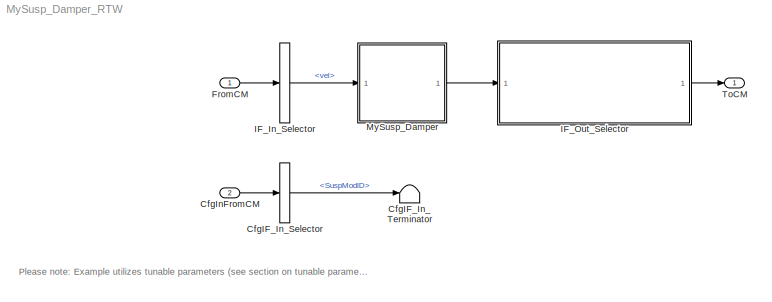
MODEL MySusp_Damper_RTW
KIND model
CONFIG InitFcn = vehicle = 'Car'; if ~length(which('cmself')), cmenv; end\nMySusp_Damper_RTW_bus
CONFIG PreLoadFcn = vehicle = 'Car'; if ~length(which('cmself')), cmenv; end\nMySusp_Damper_RTW_bus\nMySusp_Damper_RTW_params
BLOCK [BusSelector] CfgIF_In_Selector
  OutputSignals = SuspModID
  Ports = [1, 1]
  SID = 9
BLOCK [Terminator] CfgIF_In_Terminator
  SID = 10
BLOCK [Inport] CfgInFromCM
  OutDataTypeStr = Bus: cmSusp_DamperCfgIn
  Port = 2
  SID = 8
BLOCK [Inport] FromCM
  OutDataTypeStr = Bus: cmSusp_DamperIn
  SID = 1
BLOCK [BusSelector] IF_In_Selector
  OutputSignals = vel
  Ports = [1, 1]
  SID = 2
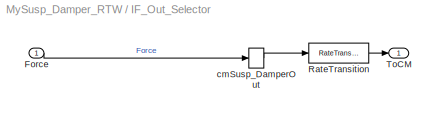
BLOCK [SubSystem] IF_Out_Selector
  OpenFcn = cmSignalSelect('SignalSelection_CB',gcb)
  Ports = [1, 1]
  RequestExecContextInheritance = off
  SID = 5
  UserData = DataTag0
  UserDataPersistent = on
BLOCK [Inport] IF_Out_Selector/Force
  SID = 13
BLOCK [RateTransition] IF_Out_Selector/RateTransition
  OutPortSampleTime = str2num(get_param(bdroot,'FixedStep'))
  SID = 6
BLOCK [Outport] IF_Out_Selector/ToCM
  SID = 7
  VectorParamsAs1DForOutWhenUnconnected = off
BLOCK [BusCreator] IF_Out_Selector/cmSusp_DamperOut
  InheritFromInputs = on
  Inputs = 1
  Ports = [1, 1]
  SID = 11
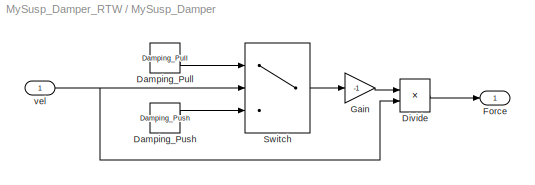
BLOCK [SubSystem] MySusp_Damper
  Ports = [1, 1]
  RequestExecContextInheritance = off
  SID = 20
BLOCK [Constant] MySusp_Damper/Damping_Pull
  SID = 17
  Value = Damping_Pull
BLOCK [Constant] MySusp_Damper/Damping_Push
  SID = 16
  Value = Damping_Push
BLOCK [Product] MySusp_Damper/Divide
  Inputs = **
  Ports = [2, 1]
  SID = 19
BLOCK [Outport] MySusp_Damper/Force
  SID = 22
  VectorParamsAs1DForOutWhenUnconnected = off
BLOCK [Gain] MySusp_Damper/Gain
  Gain = -1
  SID = 18
BLOCK [Switch] MySusp_Damper/Switch
  InputSameDT = off
  SID = 15
  SaturateOnIntegerOverflow = off
BLOCK [Inport] MySusp_Damper/vel
  SID = 21
BLOCK [Outport] ToCM
  OutDataTypeStr = Bus: cmSusp_DamperOut
  SID = 4
  VectorParamsAs1DForOutWhenUnconnected = off
ANNOTATION (root): \n \n Please note: Example utilizes tunable parameters (see section on tunable parameters in the Programmers Guide). \n \n For user models of the class Susp_Damper at least one modelclass-specific parameter (*.TimeInvariant) needs to be specified in the \n "Modelclass-specific Parameters" dialog of the CarMaker GUI.
LINE CfgIF_In_Selector:1 -> CfgIF_In_Terminator:1
LINE CfgInFromCM:1 -> CfgIF_In_Selector:1
LINE FromCM:1 -> IF_In_Selector:1
LINE IF_In_Selector:1 -> MySusp_Damper:1
LINE IF_Out_Selector/Force:1 -> IF_Out_Selector/cmSusp_DamperOut:1
LINE IF_Out_Selector/RateTransition:1 -> IF_Out_Selector/ToCM:1
LINE IF_Out_Selector/cmSusp_DamperOut:1 -> IF_Out_Selector/RateTransition:1
LINE IF_Out_Selector:1 -> ToCM:1
LINE MySusp_Damper/Damping_Pull:1 -> MySusp_Damper/Switch:1
LINE MySusp_Damper/Damping_Push:1 -> MySusp_Damper/Switch:3
LINE MySusp_Damper/Divide:1 -> MySusp_Damper/Force:1
LINE MySusp_Damper/Gain:1 -> MySusp_Damper/Divide:1
LINE MySusp_Damper/Switch:1 -> MySusp_Damper/Gain:1
NET MySusp_Damper/vel:1 -> MySusp_Damper/Divide:2, MySusp_Damper/Switch:2
LINE MySusp_Damper:1 -> IF_Out_Selector:1
note: NET lines group one-source signal fan-out (src -> all destinations, sorted); 1:1 wires keep LINE
